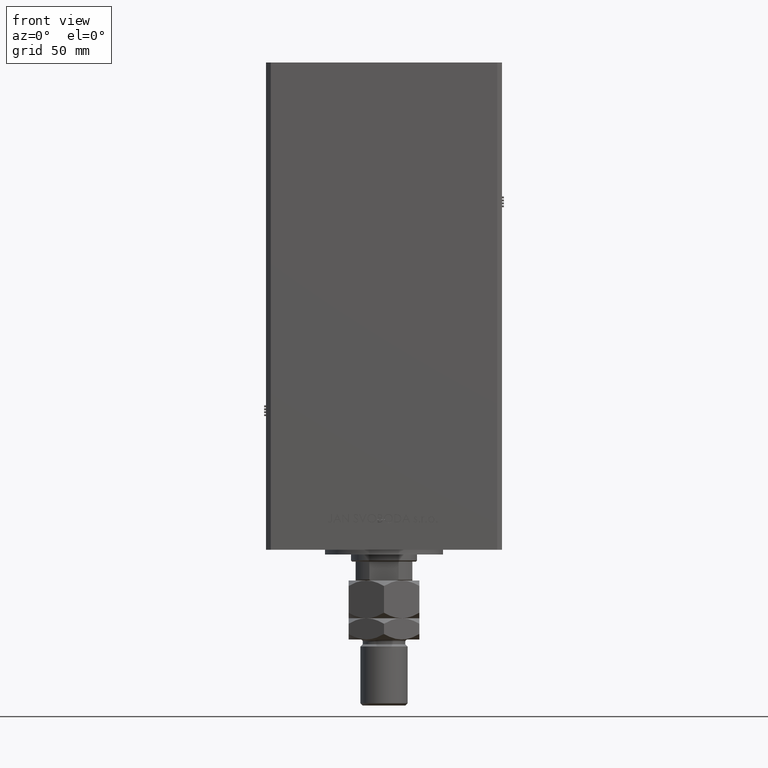
[diagram: clean part render]
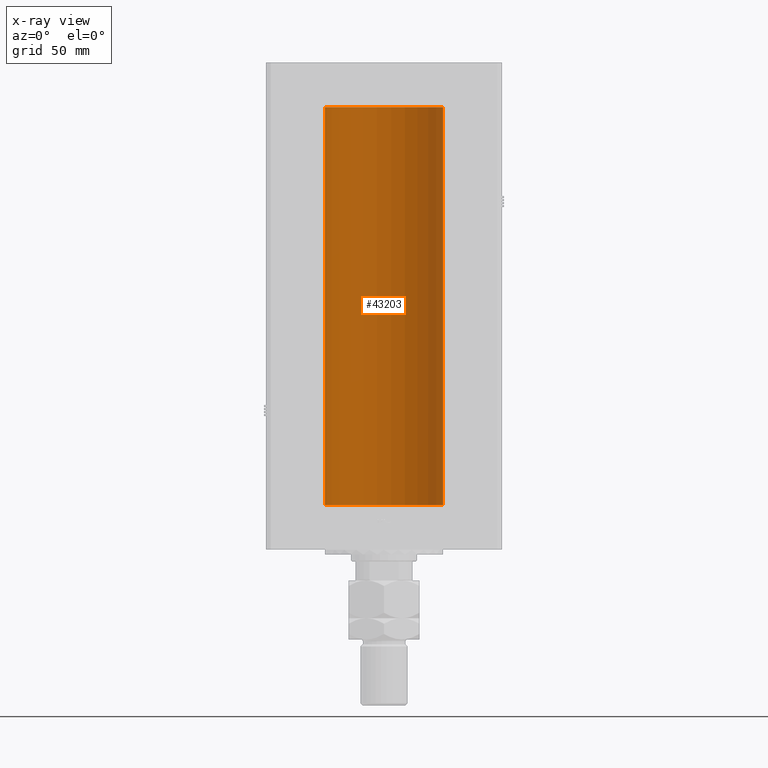
[diagram: x-ray — body ghosted, one internal face saturated and labeled with its STEP entity id]
A machine part, front view, then the same camera in x-ray: the body is ghosted and one INTERNAL B-rep face — a face not visible from any outside direction — is saturated and labeled: STEP entity #43203.
In plain terms, the highlighted cylindrical surface (partial cylindrical patch) has radius 25 mm, axis along (-0, -0, -1).
Its self-contained STEP definition (entity closure, byte-faithful):
#737 = VERTEX_POINT ( 'NONE', #25886 ) ;
#3855 = EDGE_CURVE ( 'NONE', #32974, #24661, #44154, .T. ) ;
#7189 = EDGE_CURVE ( 'NONE', #737, #47691, #10498, .T. ) ;
#8479 = CARTESIAN_POINT ( 'NONE',  ( 0.000000000000000000, 0.000000000000000000, 0.000000000000000000 ) ) ;
#8773 = ORIENTED_EDGE ( 'NONE', *, *, #47221, .T. ) ;
#10498 = LINE ( 'NONE', #22765, #45382 ) ;
#12295 = DIRECTION ( 'NONE',  ( -0.000000000000000000, 0.000000000000000000, 1.000000000000000000 ) ) ;
#14212 = ORIENTED_EDGE ( 'NONE', *, *, #7189, .F. ) ;
#14590 = CARTESIAN_POINT ( 'NONE',  ( 25.00000000000000000, 3.061616997868383043E-15, 0.000000000000000000 ) ) ;
#15512 = CARTESIAN_POINT ( 'NONE',  ( 0.000000000000000000, 0.000000000000000000, 168.5000000000000000 ) ) ;
#19154 = VECTOR ( 'NONE', #49310, 1000.000000000000000 ) ;
#20523 = CARTESIAN_POINT ( 'NONE',  ( -25.00000000000000000, 0.000000000000000000, 0.000000000000000000 ) ) ;
#21430 = AXIS2_PLACEMENT_3D ( 'NONE', #32500, #36569, #32768 ) ;
#22765 = CARTESIAN_POINT ( 'NONE',  ( 25.00000000000000000, 3.061616997868383043E-15, 168.5000000000000000 ) ) ;
#23668 = CARTESIAN_POINT ( 'NONE',  ( -25.00000000000000000, 0.000000000000000000, 168.5000000000000000 ) ) ;
#24661 = VERTEX_POINT ( 'NONE', #20523 ) ;
#25477 = FACE_OUTER_BOUND ( 'NONE', #46129, .T. ) ;
#25886 = CARTESIAN_POINT ( 'NONE',  ( 25.00000000000000000, 3.061616997868383043E-15, 168.5000000000000000 ) ) ;
#27826 = ORIENTED_EDGE ( 'NONE', *, *, #40454, .F. ) ;
#29939 = CIRCLE ( 'NONE', #36902, 25.00000000000000000 ) ;
#32143 = DIRECTION ( 'NONE',  ( -1.000000000000000000, 0.000000000000000000, 0.000000000000000000 ) ) ;
#32500 = CARTESIAN_POINT ( 'NONE',  ( 0.000000000000000000, 0.000000000000000000, 168.5000000000000000 ) ) ;
#32562 = AXIS2_PLACEMENT_3D ( 'NONE', #15512, #44344, #32143 ) ;
#32709 = CIRCLE ( 'NONE', #21430, 25.00000000000000000 ) ;
#32768 = DIRECTION ( 'NONE',  ( 1.000000000000000000, 0.000000000000000000, 0.000000000000000000 ) ) ;
#32974 = VERTEX_POINT ( 'NONE', #23668 ) ;
#36203 = CYLINDRICAL_SURFACE ( 'NONE', #32562, 25.00000000000000000 ) ;
#36281 = CARTESIAN_POINT ( 'NONE',  ( -25.00000000000000000, 0.000000000000000000, 168.5000000000000000 ) ) ;
#36569 = DIRECTION ( 'NONE',  ( -0.000000000000000000, 0.000000000000000000, 1.000000000000000000 ) ) ;
#36902 = AXIS2_PLACEMENT_3D ( 'NONE', #8479, #12295, #53661 ) ;
#40454 = EDGE_CURVE ( 'NONE', #47691, #24661, #29939, .T. ) ;
#40945 = ORIENTED_EDGE ( 'NONE', *, *, #3855, .T. ) ;
#43203 = ADVANCED_FACE ( 'NONE', ( #25477 ), #36203, .F. ) ;
#43967 = DIRECTION ( 'NONE',  ( -0.000000000000000000, -0.000000000000000000, -1.000000000000000000 ) ) ;
#44154 = LINE ( 'NONE', #36281, #19154 ) ;
#44344 = DIRECTION ( 'NONE',  ( -0.000000000000000000, -0.000000000000000000, -1.000000000000000000 ) ) ;
#45382 = VECTOR ( 'NONE', #43967, 1000.000000000000000 ) ;
#46129 = EDGE_LOOP ( 'NONE', ( #14212, #8773, #40945, #27826 ) ) ;
#47221 = EDGE_CURVE ( 'NONE', #737, #32974, #32709, .T. ) ;
#47691 = VERTEX_POINT ( 'NONE', #14590 ) ;
#49310 = DIRECTION ( 'NONE',  ( -0.000000000000000000, -0.000000000000000000, -1.000000000000000000 ) ) ;
#53661 = DIRECTION ( 'NONE',  ( 1.000000000000000000, 0.000000000000000000, 0.000000000000000000 ) ) ;